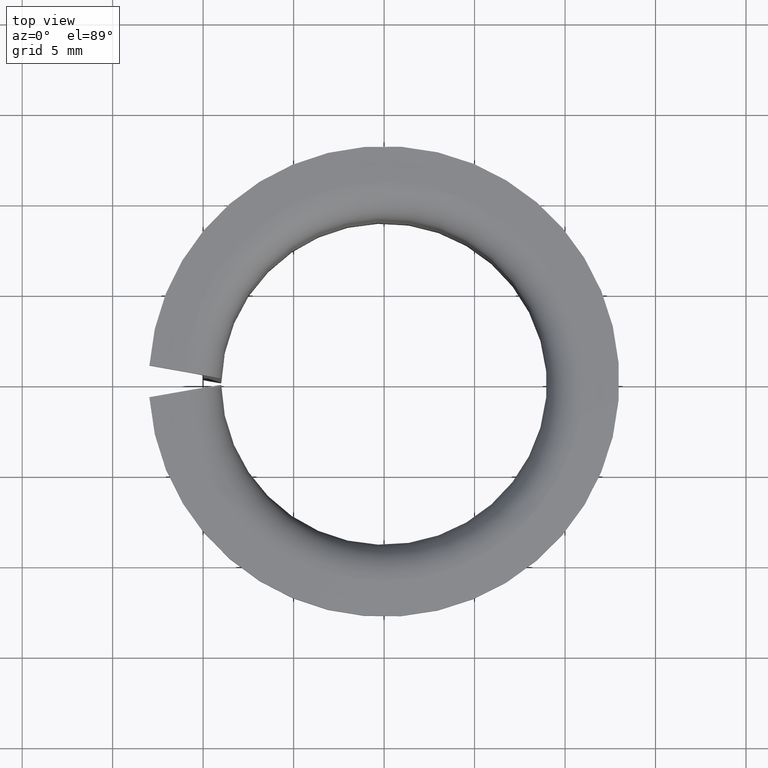
[diagram: clean part render]
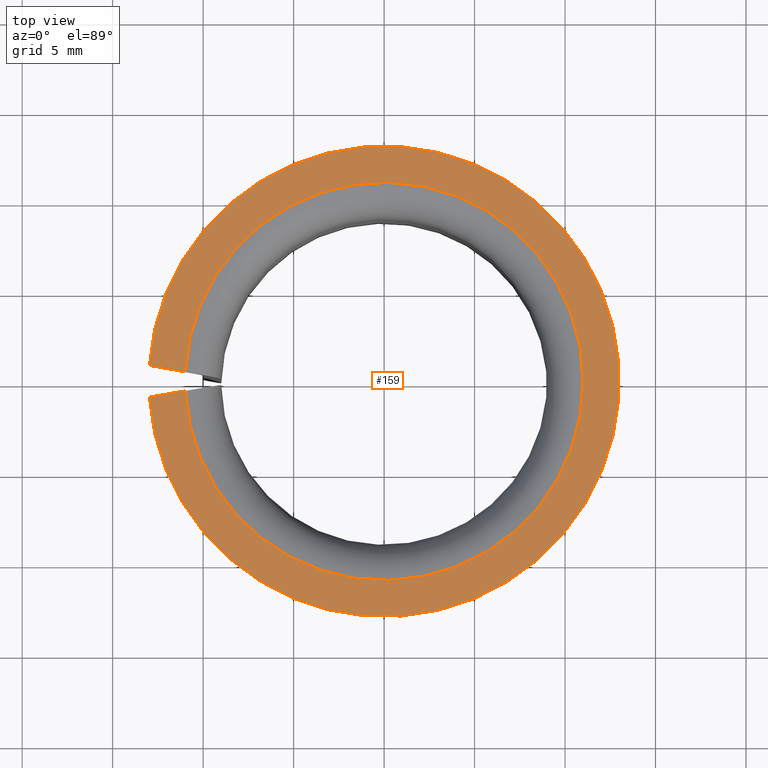
[diagram: same view with one face highlighted and labeled with its STEP entity id]
A machine part, top view. The second image highlights one B-rep face of the part: STEP entity #159.
In plain terms, the highlighted planar face has unit normal (0, -0, 1).
Its self-contained STEP definition (entity closure, byte-faithful):
#159=ADVANCED_FACE('',(#179),#180,.T.);
#179=FACE_OUTER_BOUND('',#204,.T.);
#180=PLANE('',#205);
#204=EDGE_LOOP('',(#264,#265,#266,#267));
#205=AXIS2_PLACEMENT_3D('',#268,#269,#270);
#264=ORIENTED_EDGE('',*,*,#327,.T.);
#265=ORIENTED_EDGE('',*,*,#335,.F.);
#266=ORIENTED_EDGE('',*,*,#333,.F.);
#267=ORIENTED_EDGE('',*,*,#313,.T.);
#268=CARTESIAN_POINT('',(0.013,0.0,0.017));
#269=DIRECTION('',(0.0,6.12323399573677E-017,1.0));
#270=DIRECTION('',(0.0,-1.0,6.12323399573677E-017));
#313=EDGE_CURVE('',#345,#343,#346,.T.);
#327=EDGE_CURVE('',#343,#369,#371,.T.);
#333=EDGE_CURVE('',#345,#380,#381,.T.);
#335=EDGE_CURVE('',#380,#369,#383,.T.);
#343=VERTEX_POINT('',#393);
#345=VERTEX_POINT('',#408);
#346=LINE('',#409,#410);
#369=VERTEX_POINT('',#454);
#371=CIRCLE('',#469,0.011);
#380=VERTEX_POINT('',#486);
#381=CIRCLE('',#487,0.013);
#383=LINE('',#490,#491);
#393=CARTESIAN_POINT('',(0.0109873804139217,-0.000526755768614425,0.017));
#408=CARTESIAN_POINT('',(0.0129704235998045,-0.000876419786195622,0.017));
#409=CARTESIAN_POINT('',(0.0158784620240977,-0.00138918542133544,0.017));
#410=VECTOR('',#506,1.0);
#454=CARTESIAN_POINT('',(0.0109873804139217,0.00052675576861443,0.017));
#469=AXIS2_PLACEMENT_3D('',#521,#522,#523);
#486=CARTESIAN_POINT('',(0.0129704235998045,0.000876419786195627,0.017));
#487=AXIS2_PLACEMENT_3D('',#534,#535,#536);
#490=CARTESIAN_POINT('',(0.0158784620240977,0.00138918542133544,0.017));
#491=VECTOR('',#538,1.0);
#506=DIRECTION('',(-0.984807753012208,0.173648177666931,0.0));
#521=CARTESIAN_POINT('',(0.0,0.0,0.017));
#522=DIRECTION('',(0.0,-6.12323399573677E-017,-1.0));
#523=DIRECTION('',(0.0,1.0,-6.12323399573677E-017));
#534=CARTESIAN_POINT('',(0.0,0.0,0.017));
#535=DIRECTION('',(0.0,-6.12323399573677E-017,-1.0));
#536=DIRECTION('',(0.0,1.0,-6.12323399573677E-017));
#538=DIRECTION('',(-0.984807753012208,-0.173648177666931,2.0942693688385E-017));